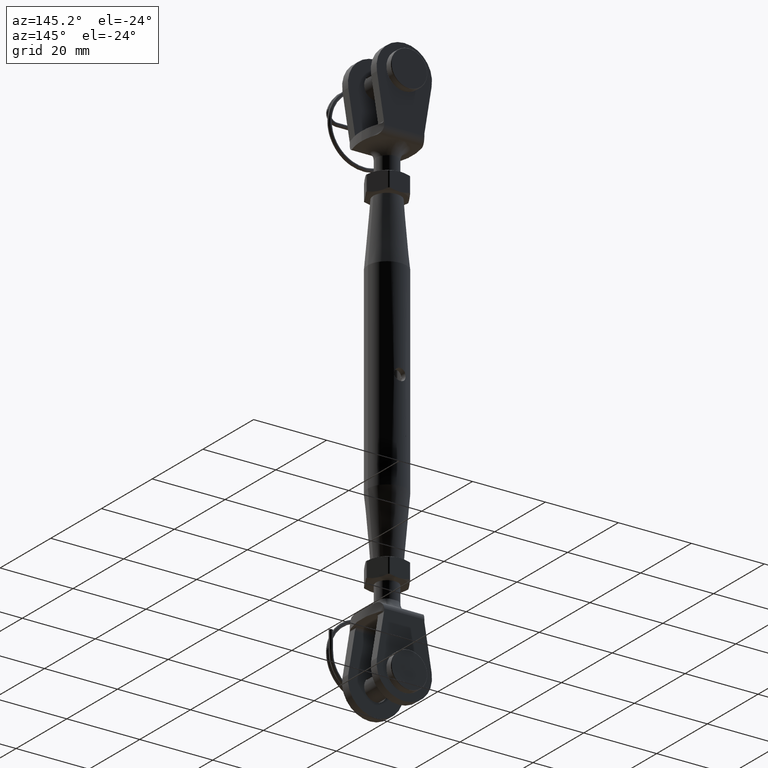
[diagram: clean part render]
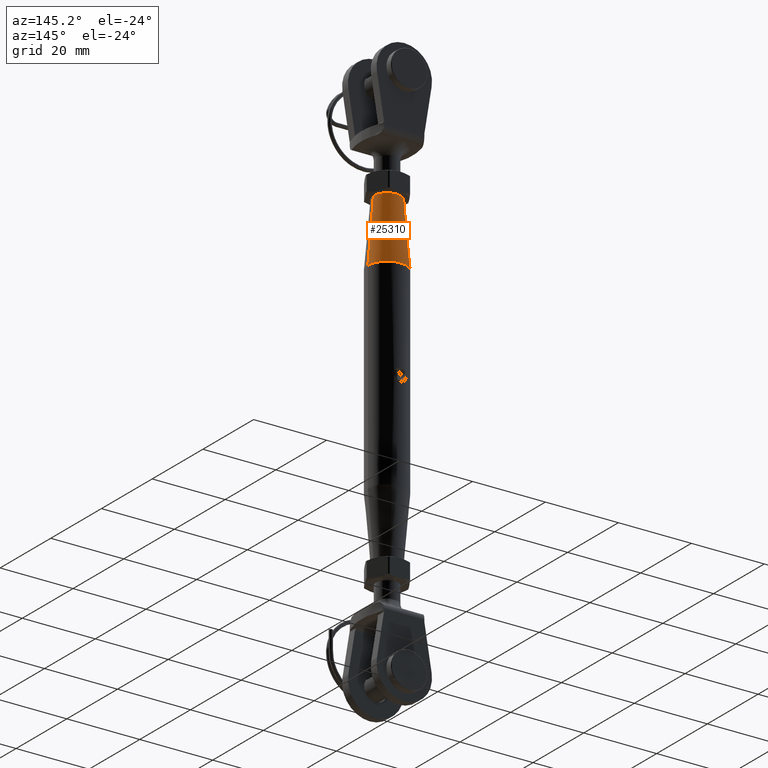
[diagram: same view with one face highlighted and labeled with its STEP entity id]
A machine part, auxiliary view. The second image highlights one B-rep face of the part: STEP entity #25310.
In plain terms, the highlighted conical surface has half-angle 4.899 deg.
Its self-contained STEP definition (entity closure, byte-faithful):
#870 = DIRECTION ( 'NONE',  ( 1.000000000000000000, 0.0000000000000000000, 0.0000000000000000000 ) ) ;
#1809 = LINE ( 'NONE', #3810, #6061 ) ;
#3021 = CARTESIAN_POINT ( 'NONE',  ( 0.0000000000000000000, 0.0000000000000000000, 27.49999999999999600 ) ) ;
#3810 = CARTESIAN_POINT ( 'NONE',  ( 5.249999999999994700, 6.429395695523597300E-016, 27.49999999999999600 ) ) ;
#4080 = VERTEX_POINT ( 'NONE', #17970 ) ;
#4826 = CIRCLE ( 'NONE', #18658, 5.249999999999994700 ) ;
#5038 = FACE_OUTER_BOUND ( 'NONE', #12131, .T. ) ;
#6061 = VECTOR ( 'NONE', #26498, 1000.000000000000000 ) ;
#6566 = CARTESIAN_POINT ( 'NONE',  ( -3.750000000000000000, 0.0000000000000000000, 45.00000000000000000 ) ) ;
#8452 = CIRCLE ( 'NONE', #9505, 3.750000000000000000 ) ;
#8831 = DIRECTION ( 'NONE',  ( -0.08540114134643547700, 0.0000000000000000000, -0.9963466490417509600 ) ) ;
#9018 = CARTESIAN_POINT ( 'NONE',  ( 5.249999999999994700, 0.0000000000000000000, 27.49999999999999600 ) ) ;
#9505 = AXIS2_PLACEMENT_3D ( 'NONE', #26311, #19452, #870 ) ;
#9838 = DIRECTION ( 'NONE',  ( -0.0000000000000000000, -0.0000000000000000000, 1.000000000000000000 ) ) ;
#12046 = VERTEX_POINT ( 'NONE', #9018 ) ;
#12131 = EDGE_LOOP ( 'NONE', ( #12226, #18649, #23959, #13785 ) ) ;
#12193 = VERTEX_POINT ( 'NONE', #13937 ) ;
#12226 = ORIENTED_EDGE ( 'NONE', *, *, #13066, .F. ) ;
#13066 = EDGE_CURVE ( 'NONE', #4080, #22722, #8452, .T. ) ;
#13406 = DIRECTION ( 'NONE',  ( 0.0000000000000000000, 0.0000000000000000000, -1.000000000000000000 ) ) ;
#13785 = ORIENTED_EDGE ( 'NONE', *, *, #22378, .F. ) ;
#13937 = CARTESIAN_POINT ( 'NONE',  ( -5.249999999999994700, 6.429395695523597300E-016, 27.49999999999999600 ) ) ;
#14942 = LINE ( 'NONE', #15730, #24178 ) ;
#15674 = DIRECTION ( 'NONE',  ( -1.000000000000000000, 0.0000000000000000000, 0.0000000000000000000 ) ) ;
#15730 = CARTESIAN_POINT ( 'NONE',  ( -5.249999999999994700, 0.0000000000000000000, 27.49999999999999600 ) ) ;
#16556 = DIRECTION ( 'NONE',  ( 1.000000000000000000, 0.0000000000000000000, 0.0000000000000000000 ) ) ;
#17003 = EDGE_CURVE ( 'NONE', #12046, #12193, #4826, .T. ) ;
#17783 = AXIS2_PLACEMENT_3D ( 'NONE', #27010, #13406, #15674 ) ;
#17970 = CARTESIAN_POINT ( 'NONE',  ( 3.750000000000000000, 5.510910596163084600E-016, 45.00000000000000000 ) ) ;
#18649 = ORIENTED_EDGE ( 'NONE', *, *, #26775, .T. ) ;
#18658 = AXIS2_PLACEMENT_3D ( 'NONE', #3021, #9838, #16556 ) ;
#19452 = DIRECTION ( 'NONE',  ( -0.0000000000000000000, -0.0000000000000000000, 1.000000000000000000 ) ) ;
#22378 = EDGE_CURVE ( 'NONE', #22722, #12193, #14942, .T. ) ;
#22722 = VERTEX_POINT ( 'NONE', #6566 ) ;
#23959 = ORIENTED_EDGE ( 'NONE', *, *, #17003, .T. ) ;
#24124 = CONICAL_SURFACE ( 'NONE', #17783, 5.249999999999994700, 0.08550529367820432200 ) ;
#24178 = VECTOR ( 'NONE', #8831, 1000.000000000000000 ) ;
#25310 = ADVANCED_FACE ( 'NONE', ( #5038 ), #24124, .T. ) ;
#26311 = CARTESIAN_POINT ( 'NONE',  ( 0.0000000000000000000, 0.0000000000000000000, 45.00000000000000000 ) ) ;
#26498 = DIRECTION ( 'NONE',  ( 0.08540114134643547700, 1.045862343934428900E-017, -0.9963466490417509600 ) ) ;
#26775 = EDGE_CURVE ( 'NONE', #4080, #12046, #1809, .T. ) ;
#27010 = CARTESIAN_POINT ( 'NONE',  ( 0.0000000000000000000, 0.0000000000000000000, 27.49999999999999600 ) ) ;